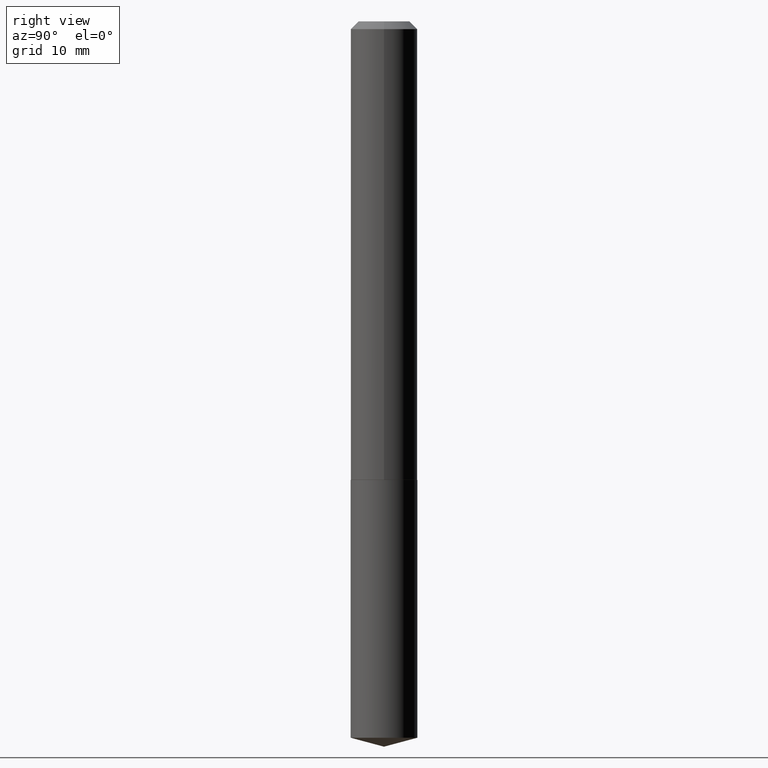
[diagram: clean part render]
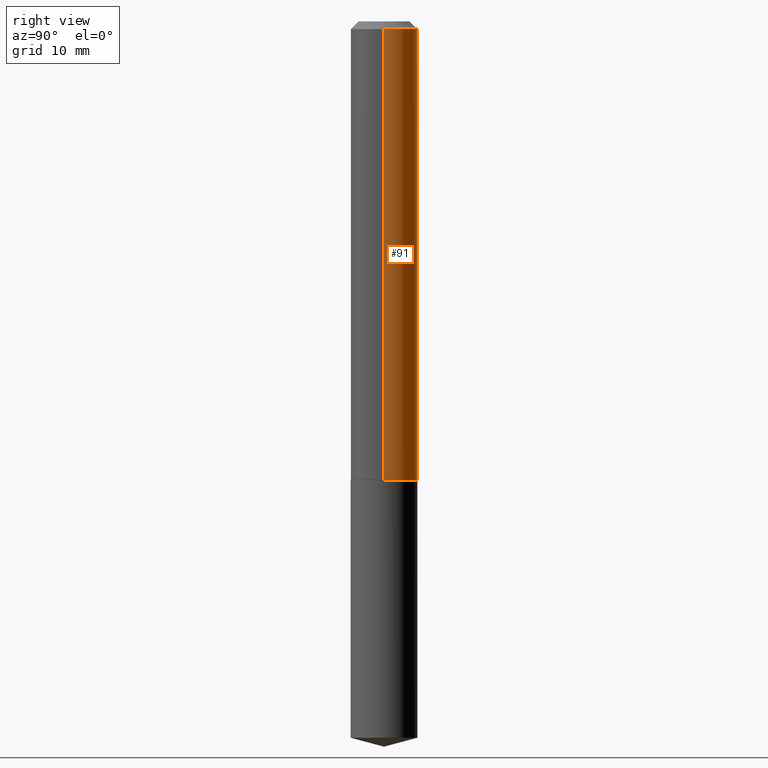
[diagram: same view with one face highlighted and labeled with its STEP entity id]
A machine part, right view. The second image highlights one B-rep face of the part: STEP entity #91.
In plain terms, the highlighted cylindrical surface (edge-blend (fillet) strip) has radius 3.3998 mm, axis along (-0, 0, 1).
Its self-contained STEP definition (entity closure, byte-faithful):
#5 = DIRECTION ( 'NONE',  ( -2.445468806185136877E-29, 3.491481338843145188E-15, 1.000000000000000000 ) ) ;
#12 = CARTESIAN_POINT ( 'NONE',  ( 0.1338499999999999968, -1.043778346247155835E-15, -0.03125000000000021511 ) ) ;
#16 = AXIS2_PLACEMENT_3D ( 'NONE', #292, #298, #265 ) ;
#36 = EDGE_CURVE ( 'NONE', #134, #295, #343, .T. ) ;
#47 = VERTEX_POINT ( 'NONE', #12 ) ;
#91 = ADVANCED_FACE ( 'NONE', ( #358 ), #331, .T. ) ;
#119 = DIRECTION ( 'NONE',  ( 1.000000000000000000, -6.982962677686269866E-15, 0.000000000000000000 ) ) ;
#125 = DIRECTION ( 'NONE',  ( 1.000000000000000000, -6.982962677686266711E-15, 4.876176775795934672E-29 ) ) ;
#128 = CARTESIAN_POINT ( 'NONE',  ( 0.000000000000000000, 0.000000000000000000, 0.000000000000000000 ) ) ;
#134 = VERTEX_POINT ( 'NONE', #335 ) ;
#145 = DIRECTION ( 'NONE',  ( -2.445468806185136597E-29, 3.491481338843145583E-15, 1.000000000000000000 ) ) ;
#167 = CARTESIAN_POINT ( 'NONE',  ( 4.504553540993022477E-29, -6.431308626149075527E-15, -1.842000000000000526 ) ) ;
#180 = AXIS2_PLACEMENT_3D ( 'NONE', #128, #145, #125 ) ;
#181 = EDGE_CURVE ( 'NONE', #295, #192, #238, .T. ) ;
#192 = VERTEX_POINT ( 'NONE', #269 ) ;
#194 = ORIENTED_EDGE ( 'NONE', *, *, #36, .T. ) ;
#210 = CARTESIAN_POINT ( 'NONE',  ( -0.1338500000000001078, 9.510614518148948646E-16, -6.583994618306196527E-30 ) ) ;
#213 = VECTOR ( 'NONE', #326, 39.37007874015748143 ) ;
#214 = ORIENTED_EDGE ( 'NONE', *, *, #336, .F. ) ;
#218 = EDGE_LOOP ( 'NONE', ( #194, #308, #214, #225 ) ) ;
#225 = ORIENTED_EDGE ( 'NONE', *, *, #242, .F. ) ;
#238 = LINE ( 'NONE', #210, #213 ) ;
#242 = EDGE_CURVE ( 'NONE', #134, #47, #337, .T. ) ;
#244 = CARTESIAN_POINT ( 'NONE',  ( -0.1338500000000002188, -5.480247174334179676E-15, -1.842000000000000526 ) ) ;
#259 = CIRCLE ( 'NONE', #16, 0.1338499999999999968 ) ;
#265 = DIRECTION ( 'NONE',  ( 1.000000000000000000, -6.982962677686266711E-15, 0.000000000000000000 ) ) ;
#269 = CARTESIAN_POINT ( 'NONE',  ( -0.1338499999999999968, -2.319147257179066069E-15, -0.03125000000000021511 ) ) ;
#292 = CARTESIAN_POINT ( 'NONE',  ( 7.642090019328604414E-31, -1.091087918388490513E-16, -0.03125000000000021511 ) ) ;
#295 = VERTEX_POINT ( 'NONE', #244 ) ;
#298 = DIRECTION ( 'NONE',  ( -2.445468806185136597E-29, 3.491481338843145583E-15, 1.000000000000000000 ) ) ;
#308 = ORIENTED_EDGE ( 'NONE', *, *, #181, .T. ) ;
#309 = CARTESIAN_POINT ( 'NONE',  ( 0.1338500000000001078, -9.346695544083075234E-16, 6.526762614402863887E-30 ) ) ;
#326 = DIRECTION ( 'NONE',  ( -2.445468806185136877E-29, 3.491481338843145188E-15, 1.000000000000000000 ) ) ;
#331 = CYLINDRICAL_SURFACE ( 'NONE', #180, 0.1338500000000001078 ) ;
#335 = CARTESIAN_POINT ( 'NONE',  ( 0.1338500000000002188, -7.365978180557384825E-15, -1.842000000000000526 ) ) ;
#336 = EDGE_CURVE ( 'NONE', #47, #192, #259, .T. ) ;
#337 = LINE ( 'NONE', #309, #371 ) ;
#343 = CIRCLE ( 'NONE', #377, 0.1338500000000002188 ) ;
#358 = FACE_OUTER_BOUND ( 'NONE', #218, .T. ) ;
#371 = VECTOR ( 'NONE', #5, 39.37007874015748143 ) ;
#377 = AXIS2_PLACEMENT_3D ( 'NONE', #167, #381, #119 ) ;
#381 = DIRECTION ( 'NONE',  ( -2.445468806185136597E-29, 3.491481338843145583E-15, 1.000000000000000000 ) ) ;